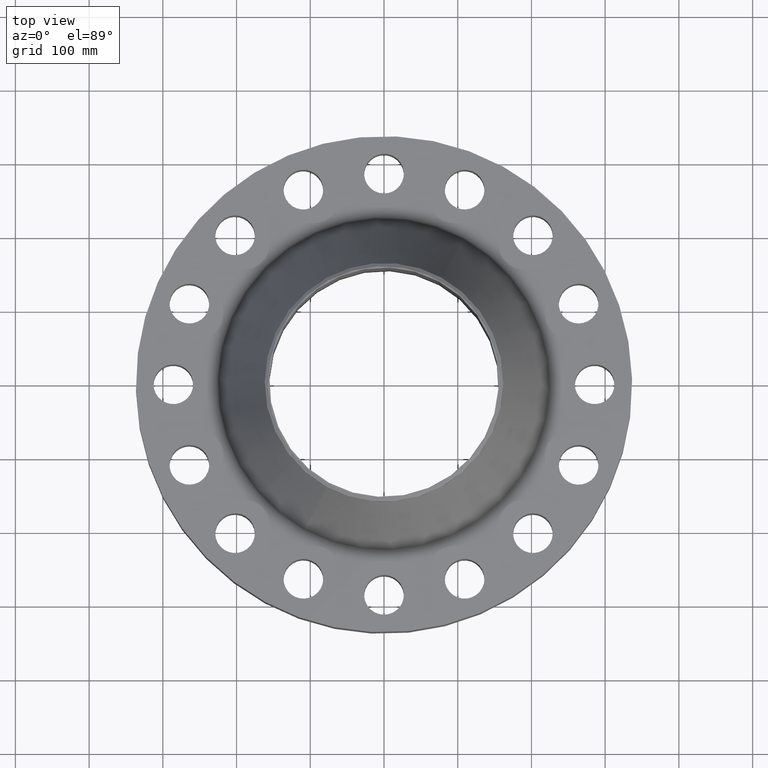
[diagram: clean part render]
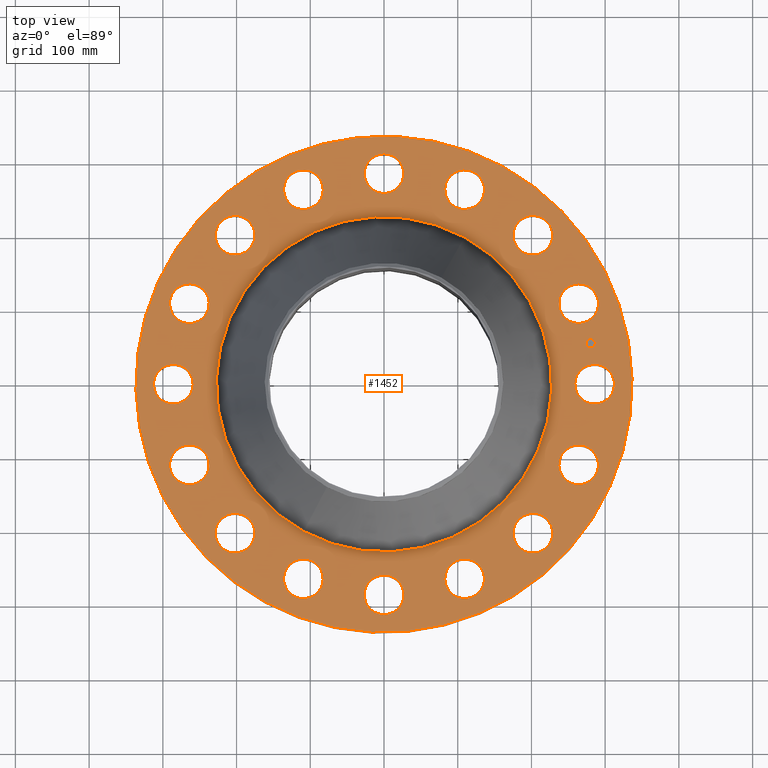
[diagram: same view with one face highlighted and labeled with its STEP entity id]
A machine part, top view. The second image highlights one B-rep face of the part: STEP entity #1452.
In plain terms, the highlighted planar face has unit normal (0, 0, -1).
Its self-contained STEP definition (entity closure, byte-faithful):
#65=AXIS2_PLACEMENT_3D('Circle Axis2P3D',#63,#64,$) ;
#82=AXIS2_PLACEMENT_3D('Circle Axis2P3D',#80,#81,$) ;
#115=AXIS2_PLACEMENT_3D('Circle Axis2P3D',#113,#114,$) ;
#139=AXIS2_PLACEMENT_3D('Circle Axis2P3D',#137,#138,$) ;
#156=AXIS2_PLACEMENT_3D('Circle Axis2P3D',#154,#155,$) ;
#191=AXIS2_PLACEMENT_3D('Circle Axis2P3D',#189,#190,$) ;
#733=AXIS2_PLACEMENT_3D('Circle Axis2P3D',#731,#732,$) ;
#745=AXIS2_PLACEMENT_3D('Circle Axis2P3D',#743,#744,$) ;
#776=AXIS2_PLACEMENT_3D('Circle Axis2P3D',#774,#775,$) ;
#788=AXIS2_PLACEMENT_3D('Circle Axis2P3D',#786,#787,$) ;
#819=AXIS2_PLACEMENT_3D('Circle Axis2P3D',#817,#818,$) ;
#831=AXIS2_PLACEMENT_3D('Circle Axis2P3D',#829,#830,$) ;
#862=AXIS2_PLACEMENT_3D('Circle Axis2P3D',#860,#861,$) ;
#874=AXIS2_PLACEMENT_3D('Circle Axis2P3D',#872,#873,$) ;
#905=AXIS2_PLACEMENT_3D('Circle Axis2P3D',#903,#904,$) ;
#917=AXIS2_PLACEMENT_3D('Circle Axis2P3D',#915,#916,$) ;
#948=AXIS2_PLACEMENT_3D('Circle Axis2P3D',#946,#947,$) ;
#960=AXIS2_PLACEMENT_3D('Circle Axis2P3D',#958,#959,$) ;
#991=AXIS2_PLACEMENT_3D('Circle Axis2P3D',#989,#990,$) ;
#1003=AXIS2_PLACEMENT_3D('Circle Axis2P3D',#1001,#1002,$) ;
#1034=AXIS2_PLACEMENT_3D('Circle Axis2P3D',#1032,#1033,$) ;
#1046=AXIS2_PLACEMENT_3D('Circle Axis2P3D',#1044,#1045,$) ;
#1077=AXIS2_PLACEMENT_3D('Circle Axis2P3D',#1075,#1076,$) ;
#1089=AXIS2_PLACEMENT_3D('Circle Axis2P3D',#1087,#1088,$) ;
#1120=AXIS2_PLACEMENT_3D('Circle Axis2P3D',#1118,#1119,$) ;
#1132=AXIS2_PLACEMENT_3D('Circle Axis2P3D',#1130,#1131,$) ;
#1163=AXIS2_PLACEMENT_3D('Circle Axis2P3D',#1161,#1162,$) ;
#1175=AXIS2_PLACEMENT_3D('Circle Axis2P3D',#1173,#1174,$) ;
#1206=AXIS2_PLACEMENT_3D('Circle Axis2P3D',#1204,#1205,$) ;
#1218=AXIS2_PLACEMENT_3D('Circle Axis2P3D',#1216,#1217,$) ;
#1249=AXIS2_PLACEMENT_3D('Circle Axis2P3D',#1247,#1248,$) ;
#1261=AXIS2_PLACEMENT_3D('Circle Axis2P3D',#1259,#1260,$) ;
#1292=AXIS2_PLACEMENT_3D('Circle Axis2P3D',#1290,#1291,$) ;
#1304=AXIS2_PLACEMENT_3D('Circle Axis2P3D',#1302,#1303,$) ;
#1335=AXIS2_PLACEMENT_3D('Circle Axis2P3D',#1333,#1334,$) ;
#1347=AXIS2_PLACEMENT_3D('Circle Axis2P3D',#1345,#1346,$) ;
#1360=AXIS2_PLACEMENT_3D('Plane Axis2P3D',#1357,#1358,#1359) ;
#1436=AXIS2_PLACEMENT_3D('Circle Axis2P3D',#1434,#1435,$) ;
#1445=AXIS2_PLACEMENT_3D('Circle Axis2P3D',#1443,#1444,$) ;
#46=CARTESIAN_POINT('Vertex',(10.3197624844,0.508191070922,4.88000000002)) ;
#60=CARTESIAN_POINT('Vertex',(12.1802375157,-0.508191070922,4.88000000002)) ;
#63=CARTESIAN_POINT('Axis2P3D Location',(11.25,0.,4.88000000002)) ;
#80=CARTESIAN_POINT('Axis2P3D Location',(11.25,0.,4.88000000002)) ;
#110=CARTESIAN_POINT('Vertex',(-6.35238838653,-11.6279689451,4.88000000002)) ;
#113=CARTESIAN_POINT('Axis2P3D Location',(0.,0.,4.88000000002)) ;
#117=CARTESIAN_POINT('Vertex',(6.35238838653,11.6279689451,4.88000000002)) ;
#137=CARTESIAN_POINT('Axis2P3D Location',(0.,0.,4.88000000002)) ;
#154=CARTESIAN_POINT('Axis2P3D Location',(0.,0.,4.88000000002)) ;
#158=CARTESIAN_POINT('Vertex',(4.29293693056,7.85816834148,4.88000000002)) ;
#160=CARTESIAN_POINT('Vertex',(-4.29293693056,-7.85816834148,4.88000000002)) ;
#189=CARTESIAN_POINT('Axis2P3D Location',(0.,0.,4.88000000002)) ;
#721=CARTESIAN_POINT('Vertex',(-9.72869364307,3.47969479971,4.88000000002)) ;
#728=CARTESIAN_POINT('Vertex',(-11.0585958385,5.13068242854,4.88000000002)) ;
#731=CARTESIAN_POINT('Axis2P3D Location',(-10.3936447408,4.30518861412,4.88000000002)) ;
#743=CARTESIAN_POINT('Axis2P3D Location',(-10.3936447408,4.30518861412,4.88000000002)) ;
#764=CARTESIAN_POINT('Vertex',(7.65651938537,-6.93782868059,4.88000000002)) ;
#771=CARTESIAN_POINT('Vertex',(8.25338319139,-8.97207389617,4.88000000002)) ;
#774=CARTESIAN_POINT('Axis2P3D Location',(7.95495128838,-7.95495128838,4.88000000002)) ;
#786=CARTESIAN_POINT('Axis2P3D Location',(7.95495128838,-7.95495128838,4.88000000002)) ;
#807=CARTESIAN_POINT('Vertex',(-7.65651938537,6.93782868059,4.88000000002)) ;
#814=CARTESIAN_POINT('Vertex',(-8.25338319139,8.97207389617,4.88000000002)) ;
#817=CARTESIAN_POINT('Axis2P3D Location',(-7.95495128838,7.95495128838,4.88000000002)) ;
#829=CARTESIAN_POINT('Axis2P3D Location',(-7.95495128838,7.95495128838,4.88000000002)) ;
#850=CARTESIAN_POINT('Vertex',(4.41870945777,-9.33974103643,4.88000000002)) ;
#857=CARTESIAN_POINT('Vertex',(4.19166777048,-11.4475484452,4.88000000002)) ;
#860=CARTESIAN_POINT('Axis2P3D Location',(4.30518861412,-10.3936447408,4.88000000002)) ;
#872=CARTESIAN_POINT('Axis2P3D Location',(4.30518861412,-10.3936447408,4.88000000002)) ;
#893=CARTESIAN_POINT('Vertex',(-4.41870945777,9.33974103643,4.88000000002)) ;
#900=CARTESIAN_POINT('Vertex',(-4.19166777048,11.4475484452,4.88000000002)) ;
#903=CARTESIAN_POINT('Axis2P3D Location',(-4.30518861412,10.3936447408,4.88000000002)) ;
#915=CARTESIAN_POINT('Axis2P3D Location',(-4.30518861412,10.3936447408,4.88000000002)) ;
#936=CARTESIAN_POINT('Vertex',(0.508191070922,-10.3197624844,4.88000000002)) ;
#943=CARTESIAN_POINT('Vertex',(-0.508191070922,-12.1802375157,4.88000000002)) ;
#946=CARTESIAN_POINT('Axis2P3D Location',(-1.54906605189E-015,-11.25,4.88000000002)) ;
#958=CARTESIAN_POINT('Axis2P3D Location',(-1.54906605189E-015,-11.25,4.88000000002)) ;
#979=CARTESIAN_POINT('Vertex',(-0.508191070922,10.3197624844,4.88000000002)) ;
#986=CARTESIAN_POINT('Vertex',(0.508191070922,12.1802375157,4.88000000002)) ;
#989=CARTESIAN_POINT('Axis2P3D Location',(-2.06659147357E-015,11.25,4.88000000002)) ;
#1001=CARTESIAN_POINT('Axis2P3D Location',(-2.06659147357E-015,11.25,4.88000000002)) ;
#1022=CARTESIAN_POINT('Vertex',(-3.47969479971,-9.72869364307,4.88000000002)) ;
#1029=CARTESIAN_POINT('Vertex',(-5.13068242854,-11.0585958385,4.88000000002)) ;
#1032=CARTESIAN_POINT('Axis2P3D Location',(-4.30518861412,-10.3936447408,4.88000000002)) ;
#1044=CARTESIAN_POINT('Axis2P3D Location',(-4.30518861412,-10.3936447408,4.88000000002)) ;
#1065=CARTESIAN_POINT('Vertex',(3.47969479971,9.72869364307,4.88000000002)) ;
#1072=CARTESIAN_POINT('Vertex',(5.13068242854,11.0585958385,4.88000000002)) ;
#1075=CARTESIAN_POINT('Axis2P3D Location',(4.30518861412,10.3936447408,4.88000000002)) ;
#1087=CARTESIAN_POINT('Axis2P3D Location',(4.30518861412,10.3936447408,4.88000000002)) ;
#1108=CARTESIAN_POINT('Vertex',(-6.93782868059,-7.65651938537,4.88000000002)) ;
#1115=CARTESIAN_POINT('Vertex',(-8.97207389617,-8.25338319139,4.88000000002)) ;
#1118=CARTESIAN_POINT('Axis2P3D Location',(-7.95495128838,-7.95495128838,4.88000000002)) ;
#1130=CARTESIAN_POINT('Axis2P3D Location',(-7.95495128838,-7.95495128838,4.88000000002)) ;
#1151=CARTESIAN_POINT('Vertex',(6.93782868059,7.65651938537,4.88000000002)) ;
#1158=CARTESIAN_POINT('Vertex',(8.97207389617,8.25338319139,4.88000000002)) ;
#1161=CARTESIAN_POINT('Axis2P3D Location',(7.95495128838,7.95495128838,4.88000000002)) ;
#1173=CARTESIAN_POINT('Axis2P3D Location',(7.95495128838,7.95495128838,4.88000000002)) ;
#1194=CARTESIAN_POINT('Vertex',(-9.33974103643,-4.41870945777,4.88000000002)) ;
#1201=CARTESIAN_POINT('Vertex',(-11.4475484452,-4.19166777048,4.88000000002)) ;
#1204=CARTESIAN_POINT('Axis2P3D Location',(-10.3936447408,-4.30518861412,4.88000000002)) ;
#1216=CARTESIAN_POINT('Axis2P3D Location',(-10.3936447408,-4.30518861412,4.88000000002)) ;
#1237=CARTESIAN_POINT('Vertex',(9.33974103643,4.41870945777,4.88000000002)) ;
#1244=CARTESIAN_POINT('Vertex',(11.4475484452,4.19166777048,4.88000000002)) ;
#1247=CARTESIAN_POINT('Axis2P3D Location',(10.3936447408,4.30518861412,4.88000000002)) ;
#1259=CARTESIAN_POINT('Axis2P3D Location',(10.3936447408,4.30518861412,4.88000000002)) ;
#1280=CARTESIAN_POINT('Vertex',(-10.3197624844,-0.508191070922,4.88000000002)) ;
#1287=CARTESIAN_POINT('Vertex',(-12.1802375157,0.508191070922,4.88000000002)) ;
#1290=CARTESIAN_POINT('Axis2P3D Location',(-11.25,-1.37772764905E-015,4.88000000002)) ;
#1302=CARTESIAN_POINT('Axis2P3D Location',(-11.25,-1.37772764905E-015,4.88000000002)) ;
#1323=CARTESIAN_POINT('Vertex',(9.72869364307,-3.47969479971,4.88000000002)) ;
#1330=CARTESIAN_POINT('Vertex',(11.0585958385,-5.13068242854,4.88000000002)) ;
#1333=CARTESIAN_POINT('Axis2P3D Location',(10.3936447408,-4.30518861412,4.88000000002)) ;
#1345=CARTESIAN_POINT('Axis2P3D Location',(10.3936447408,-4.30518861412,4.88000000002)) ;
#1357=CARTESIAN_POINT('Axis2P3D Location',(0.,13.2500000001,4.88000000002)) ;
#1434=CARTESIAN_POINT('Axis2P3D Location',(11.0338344046,2.19476612269,4.88000000002)) ;
#1438=CARTESIAN_POINT('Vertex',(10.9855495499,2.43751047959,4.88000000002)) ;
#1440=CARTESIAN_POINT('Vertex',(11.0821192593,1.95202176579,4.88000000002)) ;
#1443=CARTESIAN_POINT('Axis2P3D Location',(11.0338344046,2.19476612269,4.88000000002)) ;
#64=DIRECTION('Axis2P3D Direction',(0.,-0.,-0.0393700787402)) ;
#81=DIRECTION('Axis2P3D Direction',(0.,-0.,-0.0393700787402)) ;
#114=DIRECTION('Axis2P3D Direction',(0.,0.,-0.0393700787402)) ;
#138=DIRECTION('Axis2P3D Direction',(0.,0.,-0.0393700787402)) ;
#155=DIRECTION('Axis2P3D Direction',(0.,0.,-0.0393700787402)) ;
#190=DIRECTION('Axis2P3D Direction',(0.,0.,-0.0393700787402)) ;
#732=DIRECTION('Axis2P3D Direction',(0.,0.,-0.0393700787402)) ;
#744=DIRECTION('Axis2P3D Direction',(0.,0.,-0.0393700787402)) ;
#775=DIRECTION('Axis2P3D Direction',(0.,-0.,-0.0393700787402)) ;
#787=DIRECTION('Axis2P3D Direction',(0.,-0.,-0.0393700787402)) ;
#818=DIRECTION('Axis2P3D Direction',(0.,0.,-0.0393700787402)) ;
#830=DIRECTION('Axis2P3D Direction',(0.,0.,-0.0393700787402)) ;
#861=DIRECTION('Axis2P3D Direction',(0.,-0.,-0.0393700787402)) ;
#873=DIRECTION('Axis2P3D Direction',(0.,-0.,-0.0393700787402)) ;
#904=DIRECTION('Axis2P3D Direction',(0.,0.,-0.0393700787402)) ;
#916=DIRECTION('Axis2P3D Direction',(0.,0.,-0.0393700787402)) ;
#947=DIRECTION('Axis2P3D Direction',(0.,-0.,-0.0393700787402)) ;
#959=DIRECTION('Axis2P3D Direction',(0.,-0.,-0.0393700787402)) ;
#990=DIRECTION('Axis2P3D Direction',(0.,0.,-0.0393700787402)) ;
#1002=DIRECTION('Axis2P3D Direction',(0.,0.,-0.0393700787402)) ;
#1033=DIRECTION('Axis2P3D Direction',(-0.,0.,-0.0393700787402)) ;
#1045=DIRECTION('Axis2P3D Direction',(-0.,0.,-0.0393700787402)) ;
#1076=DIRECTION('Axis2P3D Direction',(0.,0.,-0.0393700787402)) ;
#1088=DIRECTION('Axis2P3D Direction',(0.,0.,-0.0393700787402)) ;
#1119=DIRECTION('Axis2P3D Direction',(-0.,0.,-0.0393700787402)) ;
#1131=DIRECTION('Axis2P3D Direction',(-0.,0.,-0.0393700787402)) ;
#1162=DIRECTION('Axis2P3D Direction',(0.,0.,-0.0393700787402)) ;
#1174=DIRECTION('Axis2P3D Direction',(0.,0.,-0.0393700787402)) ;
#1205=DIRECTION('Axis2P3D Direction',(-0.,0.,-0.0393700787402)) ;
#1217=DIRECTION('Axis2P3D Direction',(-0.,0.,-0.0393700787402)) ;
#1248=DIRECTION('Axis2P3D Direction',(0.,0.,-0.0393700787402)) ;
#1260=DIRECTION('Axis2P3D Direction',(0.,0.,-0.0393700787402)) ;
#1291=DIRECTION('Axis2P3D Direction',(-0.,0.,-0.0393700787402)) ;
#1303=DIRECTION('Axis2P3D Direction',(-0.,0.,-0.0393700787402)) ;
#1334=DIRECTION('Axis2P3D Direction',(0.,-0.,-0.0393700787402)) ;
#1346=DIRECTION('Axis2P3D Direction',(0.,-0.,-0.0393700787402)) ;
#1358=DIRECTION('Axis2P3D Direction',(0.,0.,-0.0393700787402)) ;
#1359=DIRECTION('Axis2P3D XDirection',(0.0393700787402,0.,0.)) ;
#1435=DIRECTION('Axis2P3D Direction',(0.,0.,-0.0393700787402)) ;
#1444=DIRECTION('Axis2P3D Direction',(0.,0.,-0.0393700787402)) ;
#1363=ORIENTED_EDGE('',*,*,#141,.F.) ;
#1364=ORIENTED_EDGE('',*,*,#119,.F.) ;
#1367=ORIENTED_EDGE('',*,*,#67,.T.) ;
#1368=ORIENTED_EDGE('',*,*,#84,.T.) ;
#1371=ORIENTED_EDGE('',*,*,#193,.T.) ;
#1372=ORIENTED_EDGE('',*,*,#162,.T.) ;
#1375=ORIENTED_EDGE('',*,*,#1349,.T.) ;
#1376=ORIENTED_EDGE('',*,*,#1337,.T.) ;
#1379=ORIENTED_EDGE('',*,*,#790,.T.) ;
#1380=ORIENTED_EDGE('',*,*,#778,.T.) ;
#1383=ORIENTED_EDGE('',*,*,#876,.T.) ;
#1384=ORIENTED_EDGE('',*,*,#864,.T.) ;
#1387=ORIENTED_EDGE('',*,*,#962,.T.) ;
#1388=ORIENTED_EDGE('',*,*,#950,.T.) ;
#1391=ORIENTED_EDGE('',*,*,#1048,.T.) ;
#1392=ORIENTED_EDGE('',*,*,#1036,.T.) ;
#1395=ORIENTED_EDGE('',*,*,#1134,.T.) ;
#1396=ORIENTED_EDGE('',*,*,#1122,.T.) ;
#1399=ORIENTED_EDGE('',*,*,#1220,.T.) ;
#1400=ORIENTED_EDGE('',*,*,#1208,.T.) ;
#1403=ORIENTED_EDGE('',*,*,#1306,.T.) ;
#1404=ORIENTED_EDGE('',*,*,#1294,.T.) ;
#1407=ORIENTED_EDGE('',*,*,#747,.T.) ;
#1408=ORIENTED_EDGE('',*,*,#735,.T.) ;
#1411=ORIENTED_EDGE('',*,*,#833,.T.) ;
#1412=ORIENTED_EDGE('',*,*,#821,.T.) ;
#1415=ORIENTED_EDGE('',*,*,#919,.T.) ;
#1416=ORIENTED_EDGE('',*,*,#907,.T.) ;
#1419=ORIENTED_EDGE('',*,*,#1005,.T.) ;
#1420=ORIENTED_EDGE('',*,*,#993,.T.) ;
#1423=ORIENTED_EDGE('',*,*,#1091,.T.) ;
#1424=ORIENTED_EDGE('',*,*,#1079,.T.) ;
#1427=ORIENTED_EDGE('',*,*,#1177,.T.) ;
#1428=ORIENTED_EDGE('',*,*,#1165,.T.) ;
#1431=ORIENTED_EDGE('',*,*,#1263,.T.) ;
#1432=ORIENTED_EDGE('',*,*,#1251,.T.) ;
#1449=ORIENTED_EDGE('',*,*,#1442,.T.) ;
#1450=ORIENTED_EDGE('',*,*,#1447,.T.) ;
#1369=FACE_BOUND('',#1366,.T.) ;
#1373=FACE_BOUND('',#1370,.T.) ;
#1377=FACE_BOUND('',#1374,.T.) ;
#1381=FACE_BOUND('',#1378,.T.) ;
#1385=FACE_BOUND('',#1382,.T.) ;
#1389=FACE_BOUND('',#1386,.T.) ;
#1393=FACE_BOUND('',#1390,.T.) ;
#1397=FACE_BOUND('',#1394,.T.) ;
#1401=FACE_BOUND('',#1398,.T.) ;
#1405=FACE_BOUND('',#1402,.T.) ;
#1409=FACE_BOUND('',#1406,.T.) ;
#1413=FACE_BOUND('',#1410,.T.) ;
#1417=FACE_BOUND('',#1414,.T.) ;
#1421=FACE_BOUND('',#1418,.T.) ;
#1425=FACE_BOUND('',#1422,.T.) ;
#1429=FACE_BOUND('',#1426,.T.) ;
#1433=FACE_BOUND('',#1430,.T.) ;
#1451=FACE_BOUND('',#1448,.T.) ;
#1452=ADVANCED_FACE('PartBody',(#1365,#1369,#1373,#1377,#1381,#1385,#1389,#1393,#1397,#1401,#1405,#1409,#1413,#1417,#1421,#1425,#1429,#1433,#1451),#1361,.F.) ;
#66=CIRCLE('generated circle',#65,1.06) ;
#83=CIRCLE('generated circle',#82,1.06) ;
#116=CIRCLE('generated circle',#115,13.2500000001) ;
#140=CIRCLE('generated circle',#139,13.2500000001) ;
#157=CIRCLE('generated circle',#156,8.95433510501) ;
#192=CIRCLE('generated circle',#191,8.95433510501) ;
#734=CIRCLE('generated circle',#733,1.06) ;
#746=CIRCLE('generated circle',#745,1.06) ;
#777=CIRCLE('generated circle',#776,1.06) ;
#789=CIRCLE('generated circle',#788,1.06) ;
#820=CIRCLE('generated circle',#819,1.06) ;
#832=CIRCLE('generated circle',#831,1.06) ;
#863=CIRCLE('generated circle',#862,1.06) ;
#875=CIRCLE('generated circle',#874,1.06) ;
#906=CIRCLE('generated circle',#905,1.06) ;
#918=CIRCLE('generated circle',#917,1.06) ;
#949=CIRCLE('generated circle',#948,1.06) ;
#961=CIRCLE('generated circle',#960,1.06) ;
#992=CIRCLE('generated circle',#991,1.06) ;
#1004=CIRCLE('generated circle',#1003,1.06) ;
#1035=CIRCLE('generated circle',#1034,1.06) ;
#1047=CIRCLE('generated circle',#1046,1.06) ;
#1078=CIRCLE('generated circle',#1077,1.06) ;
#1090=CIRCLE('generated circle',#1089,1.06) ;
#1121=CIRCLE('generated circle',#1120,1.06) ;
#1133=CIRCLE('generated circle',#1132,1.06) ;
#1164=CIRCLE('generated circle',#1163,1.06) ;
#1176=CIRCLE('generated circle',#1175,1.06) ;
#1207=CIRCLE('generated circle',#1206,1.06) ;
#1219=CIRCLE('generated circle',#1218,1.06) ;
#1250=CIRCLE('generated circle',#1249,1.06) ;
#1262=CIRCLE('generated circle',#1261,1.06) ;
#1293=CIRCLE('generated circle',#1292,1.06) ;
#1305=CIRCLE('generated circle',#1304,1.06) ;
#1336=CIRCLE('generated circle',#1335,1.06) ;
#1348=CIRCLE('generated circle',#1347,1.06) ;
#1437=CIRCLE('generated circle',#1436,0.247500000001) ;
#1446=CIRCLE('generated circle',#1445,0.247500000001) ;
#67=EDGE_CURVE('',#47,#61,#66,.T.) ;
#84=EDGE_CURVE('',#61,#47,#83,.T.) ;
#119=EDGE_CURVE('',#111,#118,#116,.T.) ;
#141=EDGE_CURVE('',#118,#111,#140,.T.) ;
#162=EDGE_CURVE('',#159,#161,#157,.T.) ;
#193=EDGE_CURVE('',#161,#159,#192,.T.) ;
#735=EDGE_CURVE('',#722,#729,#734,.T.) ;
#747=EDGE_CURVE('',#729,#722,#746,.T.) ;
#778=EDGE_CURVE('',#765,#772,#777,.T.) ;
#790=EDGE_CURVE('',#772,#765,#789,.T.) ;
#821=EDGE_CURVE('',#808,#815,#820,.T.) ;
#833=EDGE_CURVE('',#815,#808,#832,.T.) ;
#864=EDGE_CURVE('',#851,#858,#863,.T.) ;
#876=EDGE_CURVE('',#858,#851,#875,.T.) ;
#907=EDGE_CURVE('',#894,#901,#906,.T.) ;
#919=EDGE_CURVE('',#901,#894,#918,.T.) ;
#950=EDGE_CURVE('',#937,#944,#949,.T.) ;
#962=EDGE_CURVE('',#944,#937,#961,.T.) ;
#993=EDGE_CURVE('',#980,#987,#992,.T.) ;
#1005=EDGE_CURVE('',#987,#980,#1004,.T.) ;
#1036=EDGE_CURVE('',#1023,#1030,#1035,.T.) ;
#1048=EDGE_CURVE('',#1030,#1023,#1047,.T.) ;
#1079=EDGE_CURVE('',#1066,#1073,#1078,.T.) ;
#1091=EDGE_CURVE('',#1073,#1066,#1090,.T.) ;
#1122=EDGE_CURVE('',#1109,#1116,#1121,.T.) ;
#1134=EDGE_CURVE('',#1116,#1109,#1133,.T.) ;
#1165=EDGE_CURVE('',#1152,#1159,#1164,.T.) ;
#1177=EDGE_CURVE('',#1159,#1152,#1176,.T.) ;
#1208=EDGE_CURVE('',#1195,#1202,#1207,.T.) ;
#1220=EDGE_CURVE('',#1202,#1195,#1219,.T.) ;
#1251=EDGE_CURVE('',#1238,#1245,#1250,.T.) ;
#1263=EDGE_CURVE('',#1245,#1238,#1262,.T.) ;
#1294=EDGE_CURVE('',#1281,#1288,#1293,.T.) ;
#1306=EDGE_CURVE('',#1288,#1281,#1305,.T.) ;
#1337=EDGE_CURVE('',#1324,#1331,#1336,.T.) ;
#1349=EDGE_CURVE('',#1331,#1324,#1348,.T.) ;
#1442=EDGE_CURVE('',#1439,#1441,#1437,.T.) ;
#1447=EDGE_CURVE('',#1441,#1439,#1446,.T.) ;
#1362=EDGE_LOOP('',(#1363,#1364)) ;
#1366=EDGE_LOOP('',(#1367,#1368)) ;
#1370=EDGE_LOOP('',(#1371,#1372)) ;
#1374=EDGE_LOOP('',(#1375,#1376)) ;
#1378=EDGE_LOOP('',(#1379,#1380)) ;
#1382=EDGE_LOOP('',(#1383,#1384)) ;
#1386=EDGE_LOOP('',(#1387,#1388)) ;
#1390=EDGE_LOOP('',(#1391,#1392)) ;
#1394=EDGE_LOOP('',(#1395,#1396)) ;
#1398=EDGE_LOOP('',(#1399,#1400)) ;
#1402=EDGE_LOOP('',(#1403,#1404)) ;
#1406=EDGE_LOOP('',(#1407,#1408)) ;
#1410=EDGE_LOOP('',(#1411,#1412)) ;
#1414=EDGE_LOOP('',(#1415,#1416)) ;
#1418=EDGE_LOOP('',(#1419,#1420)) ;
#1422=EDGE_LOOP('',(#1423,#1424)) ;
#1426=EDGE_LOOP('',(#1427,#1428)) ;
#1430=EDGE_LOOP('',(#1431,#1432)) ;
#1448=EDGE_LOOP('',(#1449,#1450)) ;
#1365=FACE_OUTER_BOUND('',#1362,.T.) ;
#1361=PLANE('',#1360) ;
#47=VERTEX_POINT('',#46) ;
#61=VERTEX_POINT('',#60) ;
#111=VERTEX_POINT('',#110) ;
#118=VERTEX_POINT('',#117) ;
#159=VERTEX_POINT('',#158) ;
#161=VERTEX_POINT('',#160) ;
#722=VERTEX_POINT('',#721) ;
#729=VERTEX_POINT('',#728) ;
#765=VERTEX_POINT('',#764) ;
#772=VERTEX_POINT('',#771) ;
#808=VERTEX_POINT('',#807) ;
#815=VERTEX_POINT('',#814) ;
#851=VERTEX_POINT('',#850) ;
#858=VERTEX_POINT('',#857) ;
#894=VERTEX_POINT('',#893) ;
#901=VERTEX_POINT('',#900) ;
#937=VERTEX_POINT('',#936) ;
#944=VERTEX_POINT('',#943) ;
#980=VERTEX_POINT('',#979) ;
#987=VERTEX_POINT('',#986) ;
#1023=VERTEX_POINT('',#1022) ;
#1030=VERTEX_POINT('',#1029) ;
#1066=VERTEX_POINT('',#1065) ;
#1073=VERTEX_POINT('',#1072) ;
#1109=VERTEX_POINT('',#1108) ;
#1116=VERTEX_POINT('',#1115) ;
#1152=VERTEX_POINT('',#1151) ;
#1159=VERTEX_POINT('',#1158) ;
#1195=VERTEX_POINT('',#1194) ;
#1202=VERTEX_POINT('',#1201) ;
#1238=VERTEX_POINT('',#1237) ;
#1245=VERTEX_POINT('',#1244) ;
#1281=VERTEX_POINT('',#1280) ;
#1288=VERTEX_POINT('',#1287) ;
#1324=VERTEX_POINT('',#1323) ;
#1331=VERTEX_POINT('',#1330) ;
#1439=VERTEX_POINT('',#1438) ;
#1441=VERTEX_POINT('',#1440) ;